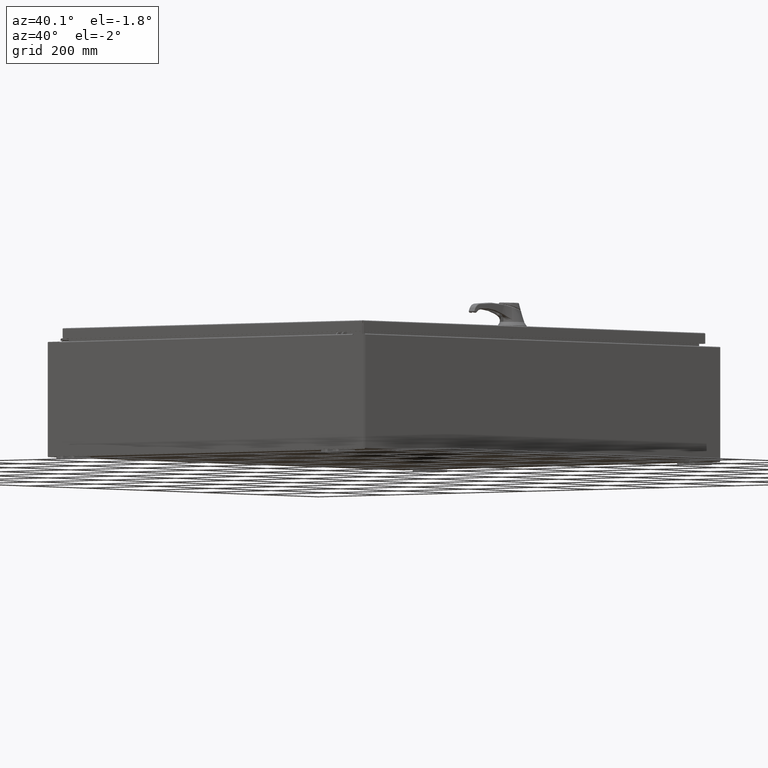
[diagram: clean part render]
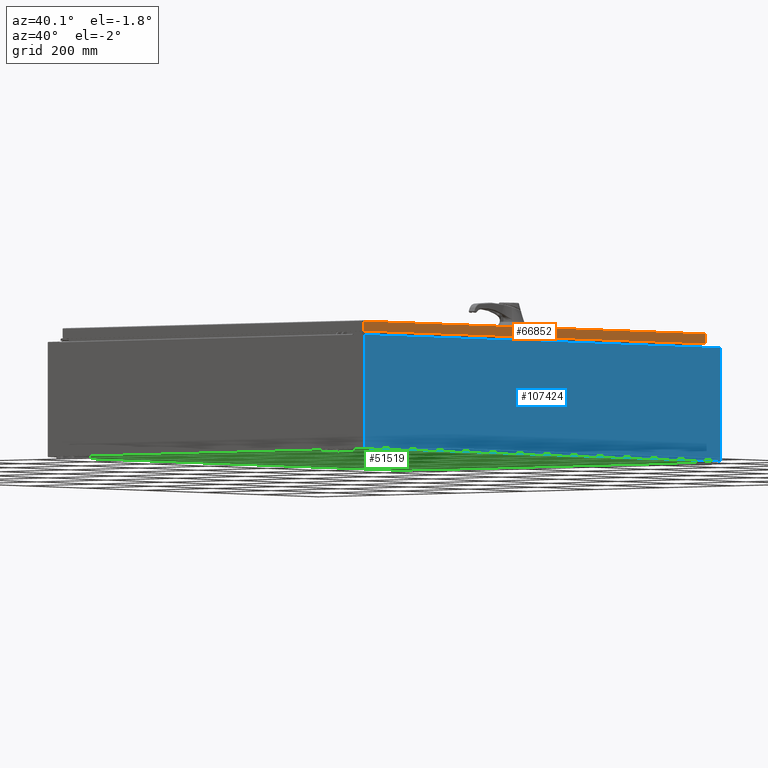
[diagram: same view with three faces highlighted in distinct colors, each labeled with its STEP entity id]
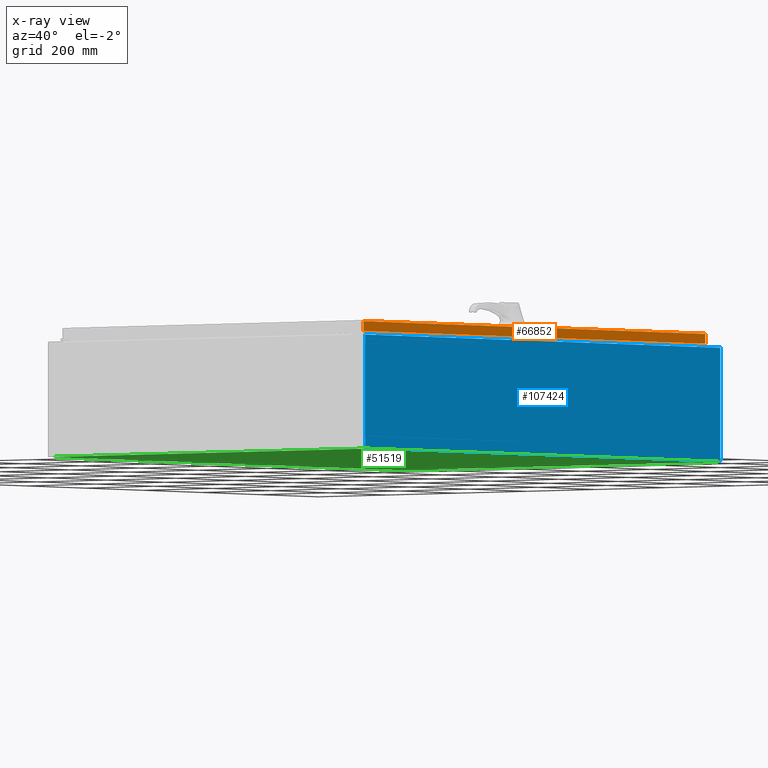
[diagram: x-ray of the same camera — body ghosted, the three highlighted faces saturated]
A machine part, auxiliary view with three faces highlighted in distinct colors.
The next image is the same camera in x-ray (body ghosted, the three faces saturated) — at least one of them is partly hidden behind the body in this view.
Their STEP definitions:

[orange] entity #66852 — the highlighted planar face has unit normal (1, 0, 0).
#4169 = LINE ( 'NONE', #95398, #90179 ) ;
#6161 = DIRECTION ( 'NONE',  ( 2.532419924601866100E-015, 0.0000000000000000000, -1.000000000000000000 ) ) ;
#8679 = EDGE_CURVE ( 'NONE', #70538, #90122, #126311, .T. ) ;
#13429 = VECTOR ( 'NONE', #130581, 39.37007874015748100 ) ;
#15129 = ORIENTED_EDGE ( 'NONE', *, *, #51741, .F. ) ;
#16753 = FACE_OUTER_BOUND ( 'NONE', #111965, .T. ) ;
#22925 = DIRECTION ( 'NONE',  ( -2.532419924601866100E-015, -6.982962677686265900E-015, 1.000000000000000000 ) ) ;
#31649 = VERTEX_POINT ( 'NONE', #101856 ) ;
#35903 = CARTESIAN_POINT ( 'NONE',  ( 17.07799999999999900, -23.00515786437626900, -0.08770000000000008300 ) ) ;
#36935 = PLANE ( 'NONE',  #50397 ) ;
#50397 = AXIS2_PLACEMENT_3D ( 'NONE', #130329, #68282, #6161 ) ;
#51741 = EDGE_CURVE ( 'NONE', #31649, #109482, #68557, .T. ) ;
#56716 = DIRECTION ( 'NONE',  ( 0.0000000000000000000, -1.000000000000000000, 0.0000000000000000000 ) ) ;
#60798 = CARTESIAN_POINT ( 'NONE',  ( 17.07800000000000300, -23.00515786437626200, -0.9376999999999997600 ) ) ;
#66852 = ADVANCED_FACE ( 'NONE', ( #16753 ), #36935, .T. ) ;
#67321 = CARTESIAN_POINT ( 'NONE',  ( 17.07799999999999900, 0.0000000000000000000, -0.08770000000000008300 ) ) ;
#68282 = DIRECTION ( 'NONE',  ( 1.000000000000000000, 0.0000000000000000000, 2.532419924601866100E-015 ) ) ;
#68557 = LINE ( 'NONE', #120153, #13429 ) ;
#70538 = VERTEX_POINT ( 'NONE', #108207 ) ;
#77782 = VECTOR ( 'NONE', #56716, 39.37007874015748100 ) ;
#80871 = LINE ( 'NONE', #116246, #111639 ) ;
#81325 = ORIENTED_EDGE ( 'NONE', *, *, #114513, .F. ) ;
#90122 = VERTEX_POINT ( 'NONE', #35903 ) ;
#90179 = VECTOR ( 'NONE', #22925, 39.37007874015748100 ) ;
#95382 = ORIENTED_EDGE ( 'NONE', *, *, #8679, .T. ) ;
#95398 = CARTESIAN_POINT ( 'NONE',  ( 17.07799999999999900, 23.00515786437627600, 2.041536398895824600E-013 ) ) ;
#101856 = CARTESIAN_POINT ( 'NONE',  ( 17.07800000000000300, 23.00515786437628000, -0.9376999999999997600 ) ) ;
#105821 = DIRECTION ( 'NONE',  ( -2.532419924601866100E-015, -6.982962677686265900E-015, 1.000000000000000000 ) ) ;
#108207 = CARTESIAN_POINT ( 'NONE',  ( 17.07799999999999900, 23.00515786437627200, -0.08770000000000008300 ) ) ;
#109482 = VERTEX_POINT ( 'NONE', #60798 ) ;
#111639 = VECTOR ( 'NONE', #105821, 39.37007874015748100 ) ;
#111965 = EDGE_LOOP ( 'NONE', ( #81325, #15129, #128086, #95382 ) ) ;
#114513 = EDGE_CURVE ( 'NONE', #109482, #90122, #80871, .T. ) ;
#116246 = CARTESIAN_POINT ( 'NONE',  ( 17.07799999999999900, -23.00515786437626900, -0.07469999999999980800 ) ) ;
#120153 = CARTESIAN_POINT ( 'NONE',  ( 17.07800000000000300, -23.09400000000000100, -0.9376999999999997600 ) ) ;
#124375 = EDGE_CURVE ( 'NONE', #31649, #70538, #4169, .T. ) ;
#126311 = LINE ( 'NONE', #67321, #77782 ) ;
#128086 = ORIENTED_EDGE ( 'NONE', *, *, #124375, .T. ) ;
#130329 = CARTESIAN_POINT ( 'NONE',  ( 17.07799999999999900, 0.0000000000000000000, 4.350948112836224800E-014 ) ) ;
#130581 = DIRECTION ( 'NONE',  ( 0.0000000000000000000, -1.000000000000000000, 0.0000000000000000000 ) ) ;

[blue] entity #107424 — the highlighted planar face has unit normal (-1, 0, 0).
#819 = ORIENTED_EDGE ( 'NONE', *, *, #97949, .T. ) ;
#5765 = VERTEX_POINT ( 'NONE', #45005 ) ;
#6607 = CARTESIAN_POINT ( 'NONE',  ( 17.99999999999999600, 23.92529999999998600, 0.01300000000000203200 ) ) ;
#7523 = CARTESIAN_POINT ( 'NONE',  ( 17.99999999999999600, 0.0000000000000000000, -6.367630515150754200E-014 ) ) ;
#10791 = DIRECTION ( 'NONE',  ( -0.0000000000000000000, -1.000000000000000000, -0.0000000000000000000 ) ) ;
#11664 = CARTESIAN_POINT ( 'NONE',  ( 18.00000000000003200, 23.92529999999998600, 9.837599999999994800 ) ) ;
#15620 = VERTEX_POINT ( 'NONE', #11664 ) ;
#18181 = CARTESIAN_POINT ( 'NONE',  ( 17.99999999999999600, 23.92529999999998900, -6.367630515150754200E-014 ) ) ;
#20230 = DIRECTION ( 'NONE',  ( 3.523082860860887800E-015, 0.0000000000000000000, 1.000000000000000000 ) ) ;
#21907 = CARTESIAN_POINT ( 'NONE',  ( 17.99999999999999600, -23.92529999999998900, 0.01299999999999984700 ) ) ;
#24279 = EDGE_CURVE ( 'NONE', #15620, #5765, #66573, .T. ) ;
#24958 = FACE_OUTER_BOUND ( 'NONE', #30651, .T. ) ;
#30651 = EDGE_LOOP ( 'NONE', ( #31936, #37092, #68101, #819 ) ) ;
#31446 = DIRECTION ( 'NONE',  ( -3.523082860860888200E-015, 0.0000000000000000000, -1.000000000000000000 ) ) ;
#31893 = VERTEX_POINT ( 'NONE', #53337 ) ;
#31936 = ORIENTED_EDGE ( 'NONE', *, *, #24279, .T. ) ;
#35669 = VECTOR ( 'NONE', #10791, 39.37007874015748100 ) ;
#36159 = AXIS2_PLACEMENT_3D ( 'NONE', #7523, #82349, #20230 ) ;
#37092 = ORIENTED_EDGE ( 'NONE', *, *, #51326, .T. ) ;
#45005 = CARTESIAN_POINT ( 'NONE',  ( 18.00000000000003200, -23.92529999999998900, 9.837600000000001900 ) ) ;
#51326 = EDGE_CURVE ( 'NONE', #5765, #31893, #97819, .T. ) ;
#52008 = CARTESIAN_POINT ( 'NONE',  ( 18.00000000000003200, 23.92529999999998900, 9.837599999999994800 ) ) ;
#53337 = CARTESIAN_POINT ( 'NONE',  ( 17.99999999999999600, -23.92529999999998900, 0.01299999999999897400 ) ) ;
#63082 = VECTOR ( 'NONE', #111080, 39.37007874015748100 ) ;
#66573 = LINE ( 'NONE', #52008, #35669 ) ;
#68101 = ORIENTED_EDGE ( 'NONE', *, *, #82546, .F. ) ;
#73545 = VECTOR ( 'NONE', #31446, 39.37007874015748100 ) ;
#82349 = DIRECTION ( 'NONE',  ( -1.000000000000000000, 0.0000000000000000000, 3.523082860860887800E-015 ) ) ;
#82546 = EDGE_CURVE ( 'NONE', #110666, #31893, #125777, .T. ) ;
#93604 = CARTESIAN_POINT ( 'NONE',  ( 17.99999999999999600, -23.92529999999998900, -6.367630515150754200E-014 ) ) ;
#97819 = LINE ( 'NONE', #93604, #73545 ) ;
#97949 = EDGE_CURVE ( 'NONE', #110666, #15620, #111689, .T. ) ;
#98234 = VECTOR ( 'NONE', #126922, 39.37007874015748100 ) ;
#107424 = ADVANCED_FACE ( 'NONE', ( #24958 ), #110867, .F. ) ;
#110666 = VERTEX_POINT ( 'NONE', #6607 ) ;
#110867 = PLANE ( 'NONE',  #36159 ) ;
#111080 = DIRECTION ( 'NONE',  ( 3.523082860860888200E-015, 0.0000000000000000000, 1.000000000000000000 ) ) ;
#111689 = LINE ( 'NONE', #18181, #63082 ) ;
#125777 = LINE ( 'NONE', #21907, #98234 ) ;
#126922 = DIRECTION ( 'NONE',  ( -1.609096119163526300E-031, -1.000000000000000000, -4.567295697298285000E-017 ) ) ;

[green] entity #51519 — the highlighted planar face has unit normal (0, 0, -1).
#2865 = CARTESIAN_POINT ( 'NONE',  ( 0.0000000000000000000, 0.0000000000000000000, -0.07470000000000000300 ) ) ;
#3090 = VERTEX_POINT ( 'NONE', #46871 ) ;
#7203 = ORIENTED_EDGE ( 'NONE', *, *, #99786, .T. ) ;
#7348 = DIRECTION ( 'NONE',  ( -0.0000000000000000000, 1.000000000000000000, -0.0000000000000000000 ) ) ;
#7565 = EDGE_CURVE ( 'NONE', #72044, #25682, #101986, .T. ) ;
#18920 = AXIS2_PLACEMENT_3D ( 'NONE', #2865, #34056, #106610 ) ;
#25682 = VERTEX_POINT ( 'NONE', #100095 ) ;
#28583 = CARTESIAN_POINT ( 'NONE',  ( -18.00000000000000400, -23.92530000000000400, -0.07470000000000000300 ) ) ;
#30304 = CARTESIAN_POINT ( 'NONE',  ( 17.91229999999999500, 23.92529999999998900, -0.07469999999999688000 ) ) ;
#34056 = DIRECTION ( 'NONE',  ( 0.0000000000000000000, 0.0000000000000000000, -1.000000000000000000 ) ) ;
#35211 = VECTOR ( 'NONE', #7348, 39.37007874015748100 ) ;
#39940 = CARTESIAN_POINT ( 'NONE',  ( -17.91230000000000500, -23.92529999999998600, -0.07469999999999994700 ) ) ;
#40069 = LINE ( 'NONE', #89451, #43345 ) ;
#43345 = VECTOR ( 'NONE', #88553, 39.37007874015748100 ) ;
#45210 = EDGE_LOOP ( 'NONE', ( #116243, #75366, #133378, #7203 ) ) ;
#46871 = CARTESIAN_POINT ( 'NONE',  ( 17.91229999999999500, 23.92529999999998600, -0.07469999999999688000 ) ) ;
#50810 = VERTEX_POINT ( 'NONE', #108615 ) ;
#51519 = ADVANCED_FACE ( 'NONE', ( #57253 ), #96241, .T. ) ;
#53393 = VECTOR ( 'NONE', #70052, 39.37007874015748100 ) ;
#57253 = FACE_OUTER_BOUND ( 'NONE', #45210, .T. ) ;
#58999 = CARTESIAN_POINT ( 'NONE',  ( -17.91230000000000500, -23.92529999999998900, -0.07469999999999994700 ) ) ;
#61120 = VECTOR ( 'NONE', #102835, 39.37007874015748100 ) ;
#70052 = DIRECTION ( 'NONE',  ( 1.000000000000000000, 1.214154663850783700E-016, 0.0000000000000000000 ) ) ;
#72044 = VERTEX_POINT ( 'NONE', #39940 ) ;
#75366 = ORIENTED_EDGE ( 'NONE', *, *, #80695, .T. ) ;
#80695 = EDGE_CURVE ( 'NONE', #72044, #50810, #117956, .T. ) ;
#81007 = EDGE_CURVE ( 'NONE', #3090, #50810, #40069, .T. ) ;
#88553 = DIRECTION ( 'NONE',  ( -1.000000000000000000, -0.0000000000000000000, -0.0000000000000000000 ) ) ;
#88678 = LINE ( 'NONE', #30304, #61120 ) ;
#89451 = CARTESIAN_POINT ( 'NONE',  ( -18.00000000000000400, 23.92530000000000000, -0.07470000000000000300 ) ) ;
#96241 = PLANE ( 'NONE',  #18920 ) ;
#99786 = EDGE_CURVE ( 'NONE', #3090, #25682, #88678, .T. ) ;
#100095 = CARTESIAN_POINT ( 'NONE',  ( 17.91229999999999500, -23.92530000000000000, -0.07470000000000000300 ) ) ;
#101986 = LINE ( 'NONE', #28583, #53393 ) ;
#102835 = DIRECTION ( 'NONE',  ( -0.0000000000000000000, -1.000000000000000000, -8.208677865577646300E-017 ) ) ;
#106610 = DIRECTION ( 'NONE',  ( -1.000000000000000000, 0.0000000000000000000, -0.0000000000000000000 ) ) ;
#108615 = CARTESIAN_POINT ( 'NONE',  ( -17.91230000000000500, 23.92529999999998900, -0.07470000000000000300 ) ) ;
#116243 = ORIENTED_EDGE ( 'NONE', *, *, #7565, .F. ) ;
#117956 = LINE ( 'NONE', #58999, #35211 ) ;
#133378 = ORIENTED_EDGE ( 'NONE', *, *, #81007, .F. ) ;